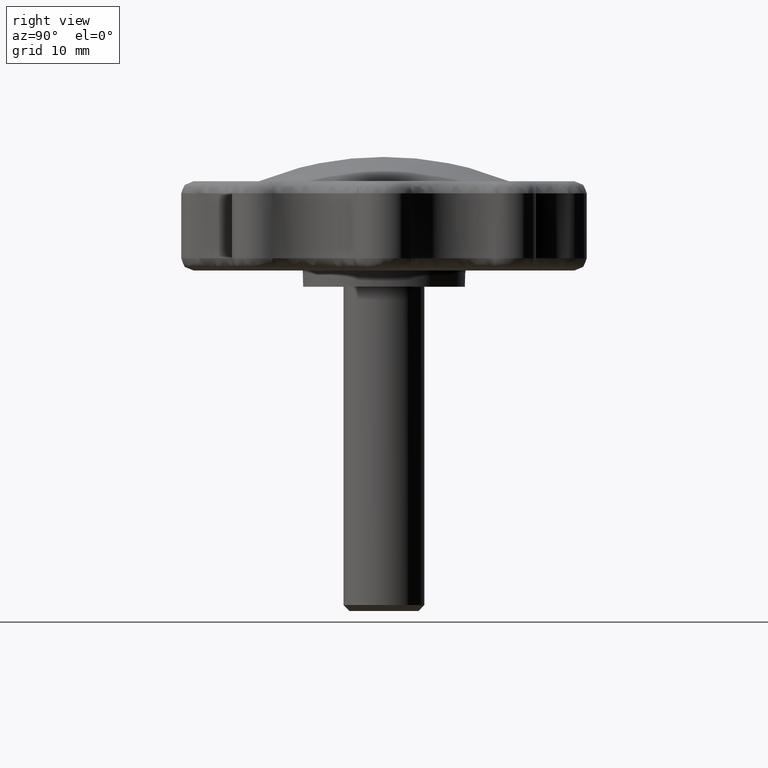
[diagram: clean part render]
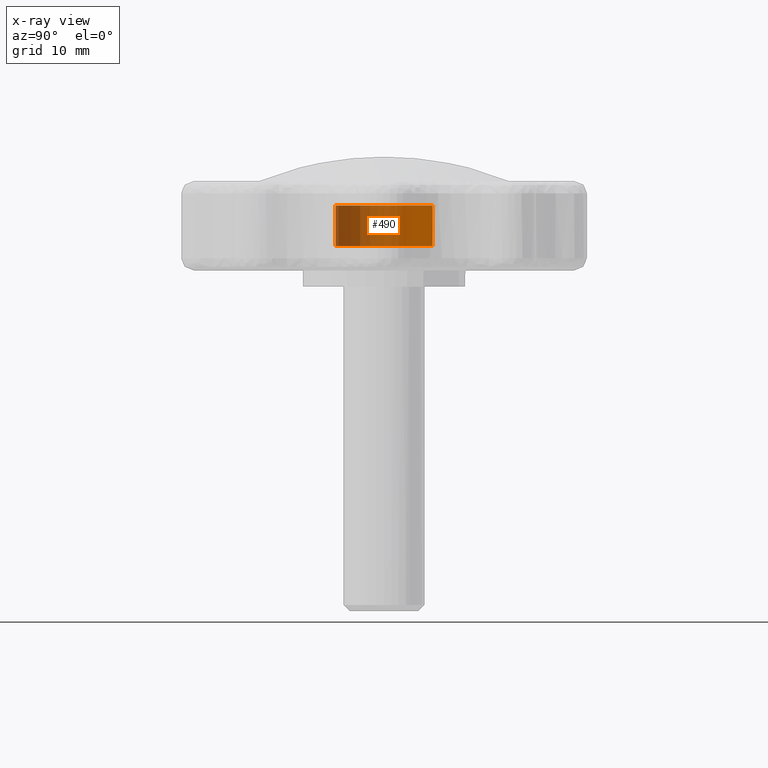
[diagram: x-ray — body ghosted, one internal face saturated and labeled with its STEP entity id]
A machine part, right view, then the same camera in x-ray: the body is ghosted and one INTERNAL B-rep face — a face not visible from any outside direction — is saturated and labeled: STEP entity #490.
In plain terms, the highlighted face is a freeform B-spline surface patch.
Its self-contained STEP definition (entity closure, byte-faithful):
#388=CARTESIAN_POINT('',(0.708205407940551,-5.958057158181998,10.125000000000130));
#389=CARTESIAN_POINT('',(0.537688371827866,-5.978325692691634,10.125000000000130));
#390=CARTESIAN_POINT('',(0.366291237209142,-5.988808790531200,10.125000000000130));
#391=CARTESIAN_POINT('',(-5.622517553322059,-6.355100027740342,10.125000000000128));
#392=CARTESIAN_POINT('',(-5.988808790531200,-0.366291237209142,10.125000000000130));
#393=CARTESIAN_POINT('',(-6.355100027740342,5.622517553322059,10.125000000000128));
#394=CARTESIAN_POINT('',(-0.366291237209142,5.988808790531200,10.125000000000130));
#395=CARTESIAN_POINT('',(0.708205407940551,-5.958057158181998,4.871874999999996));
#396=CARTESIAN_POINT('',(0.537688371827866,-5.978325692691634,4.871874999999996));
#397=CARTESIAN_POINT('',(0.366291237209142,-5.988808790531200,4.871874999999996));
#398=CARTESIAN_POINT('',(-5.622517553322059,-6.355100027740342,4.871874999999995));
#399=CARTESIAN_POINT('',(-5.988808790531200,-0.366291237209142,4.871874999999996));
#400=CARTESIAN_POINT('',(-6.355100027740342,5.622517553322059,4.871874999999995));
#401=CARTESIAN_POINT('',(-0.366291237209142,5.988808790531200,4.871874999999996));
#409=(BOUNDED_SURFACE()B_SPLINE_SURFACE(2,1,((#388,#395),(#389,#396),(#390,#397),(#391,#398),(#392,#399),(#393,#400),(#394,#401)),.UNSPECIFIED.,.F.,.F.,.U.)B_SPLINE_SURFACE_WITH_KNOTS((3,2,2,3),(2,2),(0.0,0.397645019878172,10.338770516832451,20.279896013786729),(0.0,5.253125000000134),.UNSPECIFIED.)GEOMETRIC_REPRESENTATION_ITEM()RATIONAL_B_SPLINE_SURFACE(((0.977505800795127,0.977505800795127),(0.988284271247462,0.988284271247462),(1.0,1.0),(0.707106781186548,0.707106781186548),(1.0,1.0),(0.707106781186548,0.707106781186548),(1.0,1.0)))REPRESENTATION_ITEM('')SURFACE());
#410=CARTESIAN_POINT('',(0.708197690559462,-5.958058075499586,10.000000000000259));
#411=VERTEX_POINT('',#410);
#412=CARTESIAN_POINT('',(-6.0,0.0,10.000000000000121));
#413=VERTEX_POINT('',#412);
#414=CARTESIAN_POINT('',(0.708197690559462,-5.958058075499586,10.000000000000256));
#415=CARTESIAN_POINT('',(0.355340818428082,-6.000000000000001,10.000000000000123));
#416=CARTESIAN_POINT('',(0.0,-6.0,10.000000000000121));
#417=CARTESIAN_POINT('',(-6.0,-6.0,10.000000000000121));
#418=CARTESIAN_POINT('',(-6.0,0.0,10.000000000000121));
#426=(BOUNDED_CURVE()B_SPLINE_CURVE(2,(#414,#415,#416,#417,#418),.UNSPECIFIED.,.F.,.U.)B_SPLINE_CURVE_WITH_KNOTS((3,2,3),(0.229562692423007,0.250000000000000,0.500000000000000),.UNSPECIFIED.)CURVE()GEOMETRIC_REPRESENTATION_ITEM()RATIONAL_B_SPLINE_CURVE((0.956027183255724,0.976056204799576,1.0,0.707106781186548,1.0))REPRESENTATION_ITEM(''));
#427=EDGE_CURVE('',#411,#413,#426,.T.);
#428=ORIENTED_EDGE('',*,*,#427,.T.);
#429=CARTESIAN_POINT('',(-0.366291237251477,5.988808790528612,10.000000000000121));
#430=VERTEX_POINT('',#429);
#431=CARTESIAN_POINT('',(-6.0,0.0,10.000000000000121));
#432=CARTESIAN_POINT('',(-6.0,5.644236401354231,10.000000000000119));
#433=CARTESIAN_POINT('',(-0.366291237251477,5.988808790528612,10.000000000000119));
#441=(BOUNDED_CURVE()B_SPLINE_CURVE(2,(#431,#432,#433),.UNSPECIFIED.,.F.,.U.)B_SPLINE_CURVE_WITH_KNOTS((3,3),(0.500000000000000,0.739332962239529),.UNSPECIFIED.)CURVE()GEOMETRIC_REPRESENTATION_ITEM()RATIONAL_B_SPLINE_CURVE((1.0,0.719603993286024,0.976072041667974))REPRESENTATION_ITEM(''));
#442=EDGE_CURVE('',#413,#430,#441,.T.);
#443=ORIENTED_EDGE('',*,*,#442,.T.);
#444=CARTESIAN_POINT('',(-0.366291237251475,5.988808790528612,5.0));
#445=VERTEX_POINT('',#444);
#446=CARTESIAN_POINT('',(-0.366291237251477,5.988808790528612,10.000000000000121));
#447=CARTESIAN_POINT('',(-0.366291237251475,5.988808790528612,5.0));
#448=QUASI_UNIFORM_CURVE('',1,(#446,#447),.UNSPECIFIED.,.F.,.U.);
#449=EDGE_CURVE('',#430,#445,#448,.T.);
#450=ORIENTED_EDGE('',*,*,#449,.T.);
#451=CARTESIAN_POINT('',(-6.0,0.0,5.0));
#452=VERTEX_POINT('',#451);
#453=CARTESIAN_POINT('',(-6.0,0.0,5.0));
#454=CARTESIAN_POINT('',(-6.0,5.644236401354231,4.999999999999999));
#455=CARTESIAN_POINT('',(-0.366291237251475,5.988808790528612,5.0));
#463=(BOUNDED_CURVE()B_SPLINE_CURVE(2,(#453,#454,#455),.UNSPECIFIED.,.F.,.U.)B_SPLINE_CURVE_WITH_KNOTS((3,3),(0.500000000000000,0.739332962239529),.UNSPECIFIED.)CURVE()GEOMETRIC_REPRESENTATION_ITEM()RATIONAL_B_SPLINE_CURVE((1.0,0.719603993286024,0.976072041667974))REPRESENTATION_ITEM(''));
#464=EDGE_CURVE('',#452,#445,#463,.T.);
#465=ORIENTED_EDGE('',*,*,#464,.F.);
#466=CARTESIAN_POINT('',(0.708197783668359,-5.958058064432426,5.0));
#467=VERTEX_POINT('',#466);
#468=CARTESIAN_POINT('',(0.708197783668359,-5.958058064432426,5.000000000000001));
#469=CARTESIAN_POINT('',(0.355340865474681,-6.000000000000001,5.0));
#470=CARTESIAN_POINT('',(0.0,-6.0,5.0));
#471=CARTESIAN_POINT('',(-6.0,-6.0,5.000000000000001));
#472=CARTESIAN_POINT('',(-6.0,0.0,5.0));
#480=(BOUNDED_CURVE()B_SPLINE_CURVE(2,(#468,#469,#470,#471,#472),.UNSPECIFIED.,.F.,.U.)B_SPLINE_CURVE_WITH_KNOTS((3,2,3),(0.229562689781926,0.250000000000000,0.500000000000000),.UNSPECIFIED.)CURVE()GEOMETRIC_REPRESENTATION_ITEM()RATIONAL_B_SPLINE_CURVE((0.956027178079088,0.976056201705357,1.0,0.707106781186548,1.0))REPRESENTATION_ITEM(''));
#481=EDGE_CURVE('',#467,#452,#480,.T.);
#482=ORIENTED_EDGE('',*,*,#481,.F.);
#483=CARTESIAN_POINT('',(0.708197690559462,-5.958058075499586,10.000000000000259));
#484=CARTESIAN_POINT('',(0.708197783668359,-5.958058064432426,5.0));
#485=QUASI_UNIFORM_CURVE('',1,(#483,#484),.UNSPECIFIED.,.F.,.U.);
#486=EDGE_CURVE('',#411,#467,#485,.T.);
#487=ORIENTED_EDGE('',*,*,#486,.F.);
#488=EDGE_LOOP('',(#428,#443,#450,#465,#482,#487));
#489=FACE_OUTER_BOUND('',#488,.T.);
#490=ADVANCED_FACE('',(#489),#409,.T.);